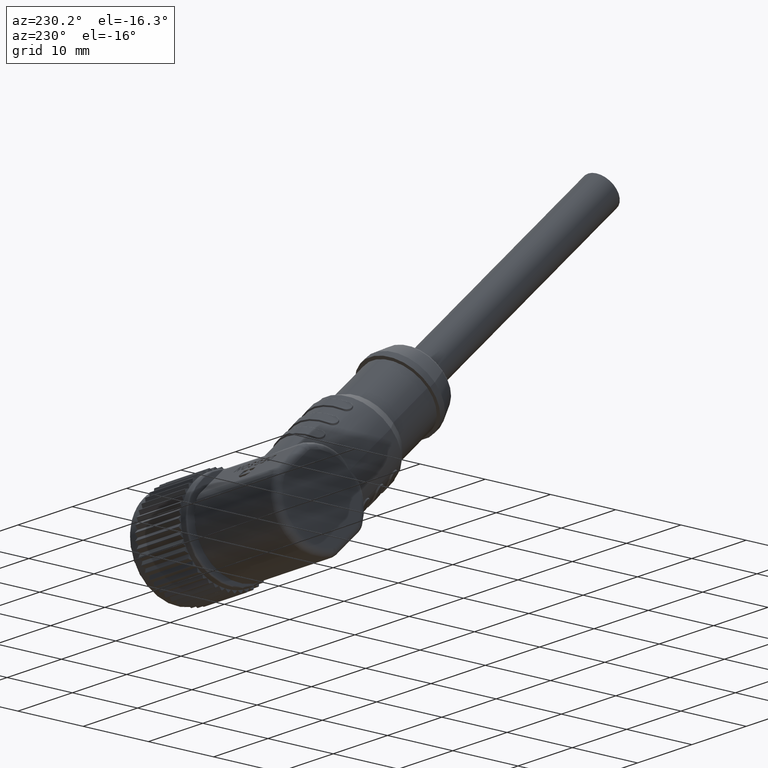
[diagram: clean part render]
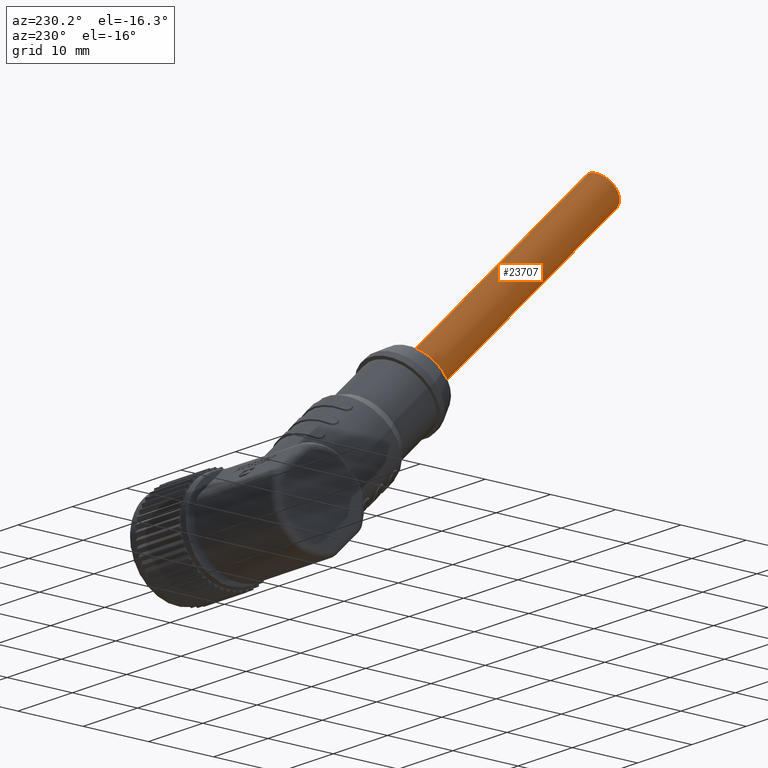
[diagram: same view with one face highlighted and labeled with its STEP entity id]
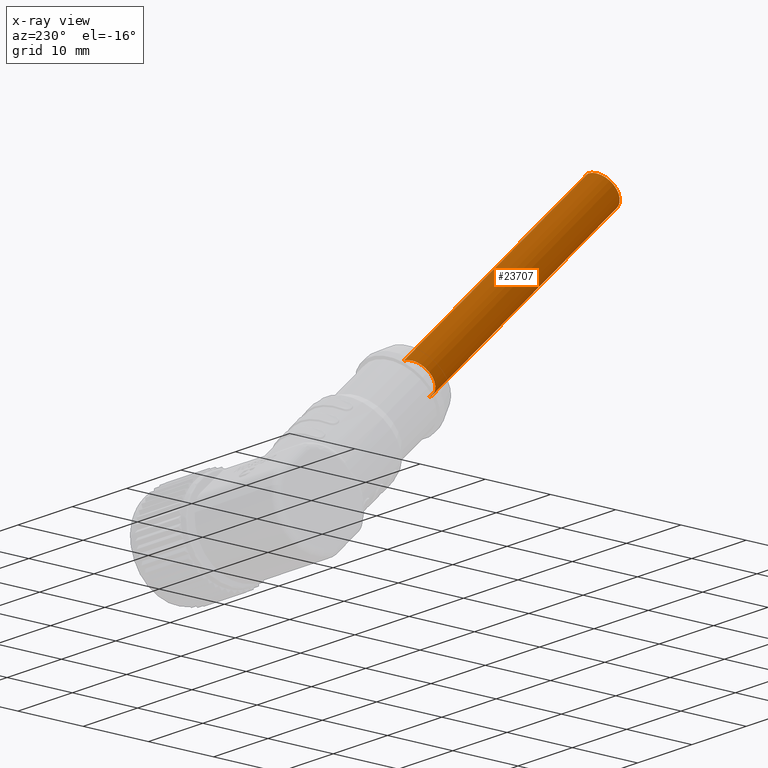
[diagram: x-ray of the same camera — body ghosted, the highlighted face saturated]
A machine part, auxiliary view. The second image highlights one B-rep face of the part: STEP entity #23707.
The next image is the same camera in x-ray: the body ghosted, the highlighted face saturated — about 0% of this face is hidden behind the body in this view.
In plain terms, the highlighted cylindrical surface (edge-blend (fillet) strip) has radius 2.7 mm, axis along (0, -0.7071, 0.7071).
Its self-contained STEP definition (entity closure, byte-faithful):
#4218=CARTESIAN_POINT('',(-2.15E1,-1.979898987322E1,1.979898987322E1));
#4219=DIRECTION('',(0.E0,-7.071067811865E-1,7.071067811865E-1));
#4220=DIRECTION('',(0.E0,7.071067811865E-1,7.071067811865E-1));
#4221=AXIS2_PLACEMENT_3D('',#4218,#4219,#4220);
#4223=DIRECTION('',(0.E0,7.071067811865E-1,-7.071067811865E-1));
#4224=VECTOR('',#4223,4.000000000001E1);
#4225=CARTESIAN_POINT('',(-2.15E1,-4.617407281149E1,4.999244942989E1));
#4226=LINE('',#4225,#4224);
#4227=DIRECTION('',(0.E0,7.071067811865E-1,-7.071067811865E-1));
#4228=VECTOR('',#4227,4.000000000001E1);
#4229=CARTESIAN_POINT('',(-2.15E1,-4.999244942989E1,4.617407281149E1));
#4230=LINE('',#4229,#4228);
#4236=CARTESIAN_POINT('',(-2.15E1,-4.808326112069E1,4.808326112069E1));
#4237=DIRECTION('',(0.E0,7.071067811865E-1,-7.071067811865E-1));
#4238=DIRECTION('',(0.E0,-7.071067811865E-1,-7.071067811865E-1));
#4239=AXIS2_PLACEMENT_3D('',#4236,#4237,#4238);
#16677=CARTESIAN_POINT('',(-2.15E1,-2.170817818242E1,1.788980156402E1));
#16678=CARTESIAN_POINT('',(-2.15E1,-1.788980156402E1,2.170817818242E1));
#16679=VERTEX_POINT('',#16677);
#16680=VERTEX_POINT('',#16678);
#16681=CARTESIAN_POINT('',(-2.15E1,-4.999244942989E1,4.617407281149E1));
#16682=VERTEX_POINT('',#16681);
#16683=CARTESIAN_POINT('',(-2.15E1,-4.617407281149E1,4.999244942989E1));
#16684=VERTEX_POINT('',#16683);
#23695=CARTESIAN_POINT('',(-2.15E1,-1.272792206136E1,1.272792206136E1));
#23696=DIRECTION('',(0.E0,-7.071067811865E-1,7.071067811865E-1));
#23697=DIRECTION('',(0.E0,-7.071067811865E-1,-7.071067811865E-1));
#23698=AXIS2_PLACEMENT_3D('',#23695,#23696,#23697);
#23699=CYLINDRICAL_SURFACE('',#23698,2.7E0);
#23700=ORIENTED_EDGE('',*,*,#23675,.F.);
#23701=ORIENTED_EDGE('',*,*,#23690,.F.);
#23703=ORIENTED_EDGE('',*,*,#23702,.F.);
#23704=ORIENTED_EDGE('',*,*,#23686,.T.);
#23705=EDGE_LOOP('',(#23700,#23701,#23703,#23704));
#23706=FACE_OUTER_BOUND('',#23705,.F.);
#23707=ADVANCED_FACE('',(#23706),#23699,.T.);
#4222=CIRCLE('',#4221,2.7E0);
#4240=CIRCLE('',#4239,2.7E0);
#23675=EDGE_CURVE('',#16680,#16679,#4222,.T.);
#23686=EDGE_CURVE('',#16682,#16679,#4230,.T.);
#23690=EDGE_CURVE('',#16684,#16680,#4226,.T.);
#23702=EDGE_CURVE('',#16682,#16684,#4240,.T.);